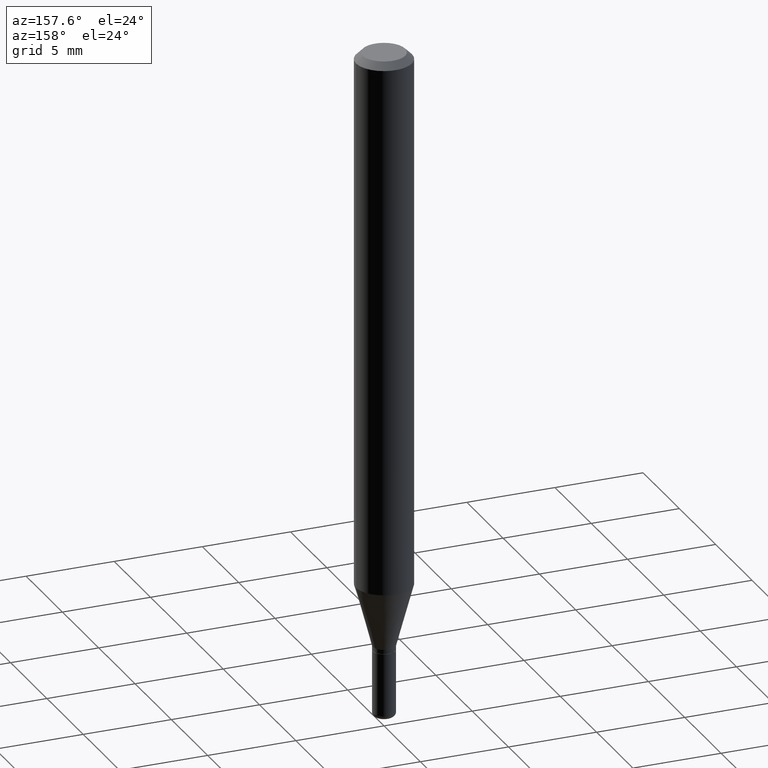
[diagram: clean part render]
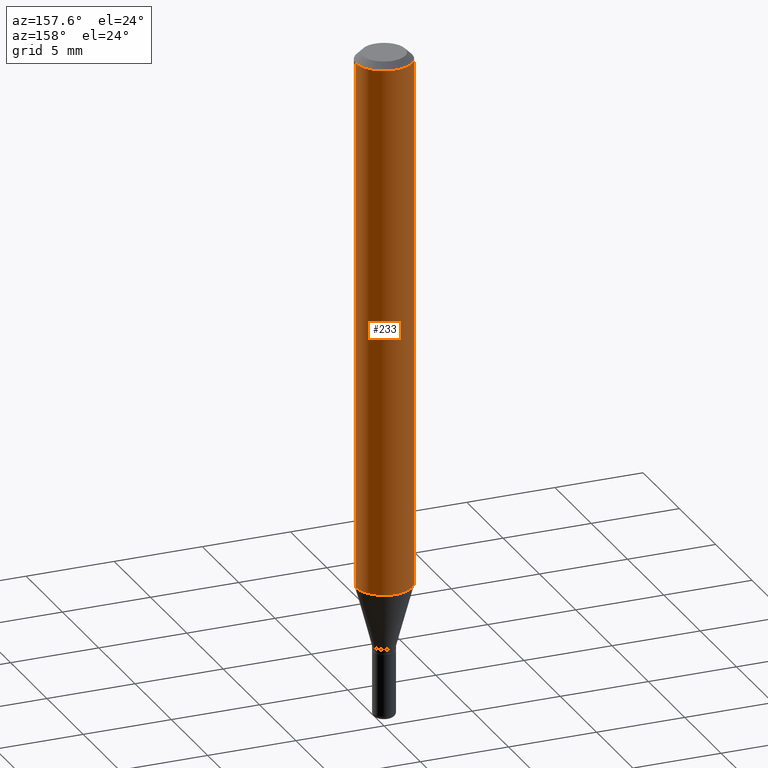
[diagram: same view with one face highlighted and labeled with its STEP entity id]
A machine part, auxiliary view. The second image highlights one B-rep face of the part: STEP entity #233.
In plain terms, the highlighted cylindrical surface (edge-blend (fillet) strip) has radius 1.5875 mm, axis along (-0, 0, 1).
Its self-contained STEP definition (entity closure, byte-faithful):
#6 = ORIENTED_EDGE ( 'NONE', *, *, #404, .F. ) ;
#32 = DIRECTION ( 'NONE',  ( -2.445468806185136597E-29, 3.491481338843145583E-15, 1.000000000000000000 ) ) ;
#33 = EDGE_LOOP ( 'NONE', ( #113, #430, #193, #6 ) ) ;
#36 = VECTOR ( 'NONE', #422, 39.37007874015748143 ) ;
#39 = CARTESIAN_POINT ( 'NONE',  ( 0.06250000000000000000, -4.888073874380378612E-16, -0.01499999999999970281 ) ) ;
#52 = CIRCLE ( 'NONE', #184, 0.06250000000000000000 ) ;
#100 = VECTOR ( 'NONE', #500, 39.37007874015748143 ) ;
#103 = EDGE_CURVE ( 'NONE', #200, #300, #287, .T. ) ;
#106 = CARTESIAN_POINT ( 'NONE',  ( 0.000000000000000000, 0.000000000000000000, 0.000000000000000000 ) ) ;
#113 = ORIENTED_EDGE ( 'NONE', *, *, #362, .T. ) ;
#171 = DIRECTION ( 'NONE',  ( 1.000000000000000000, -6.982962677686266711E-15, 0.000000000000000000 ) ) ;
#179 = CARTESIAN_POINT ( 'NONE',  ( 0.06250000000000000000, -4.364351673553916694E-16, 3.047610484872459871E-30 ) ) ;
#181 = CARTESIAN_POINT ( 'NONE',  ( 3.668203209277632395E-31, -5.237222008264614861E-17, -0.01499999999999970281 ) ) ;
#182 = CARTESIAN_POINT ( 'NONE',  ( -0.06250000000000000000, -3.745856318565706082E-15, -1.200048094716167135 ) ) ;
#184 = AXIS2_PLACEMENT_3D ( 'NONE', #181, #501, #171 ) ;
#193 = ORIENTED_EDGE ( 'NONE', *, *, #413, .F. ) ;
#200 = VERTEX_POINT ( 'NONE', #182 ) ;
#216 = DIRECTION ( 'NONE',  ( -2.445468806185136597E-29, 3.491481338843145583E-15, 1.000000000000000000 ) ) ;
#223 = CYLINDRICAL_SURFACE ( 'NONE', #414, 0.06250000000000000000 ) ;
#230 = VERTEX_POINT ( 'NONE', #39 ) ;
#233 = ADVANCED_FACE ( 'NONE', ( #509 ), #223, .T. ) ;
#244 = LINE ( 'NONE', #179, #36 ) ;
#287 = LINE ( 'NONE', #423, #100 ) ;
#300 = VERTEX_POINT ( 'NONE', #342 ) ;
#342 = CARTESIAN_POINT ( 'NONE',  ( -0.06250000000000000000, -1.677069664399144681E-15, -0.01499999999999970281 ) ) ;
#353 = AXIS2_PLACEMENT_3D ( 'NONE', #420, #216, #507 ) ;
#362 = EDGE_CURVE ( 'NONE', #486, #200, #389, .T. ) ;
#389 = CIRCLE ( 'NONE', #353, 0.06250000000000000000 ) ;
#404 = EDGE_CURVE ( 'NONE', #486, #230, #244, .T. ) ;
#413 = EDGE_CURVE ( 'NONE', #230, #300, #52, .T. ) ;
#414 = AXIS2_PLACEMENT_3D ( 'NONE', #106, #32, #431 ) ;
#420 = CARTESIAN_POINT ( 'NONE',  ( 2.934680181550293043E-29, -4.189945528415768698E-15, -1.200048094716167135 ) ) ;
#422 = DIRECTION ( 'NONE',  ( -2.445468806185136877E-29, 3.491481338843145188E-15, 1.000000000000000000 ) ) ;
#423 = CARTESIAN_POINT ( 'NONE',  ( -0.06250000000000000000, 4.440892098500626162E-16, -3.074334431409316114E-30 ) ) ;
#424 = CARTESIAN_POINT ( 'NONE',  ( 0.06250000000000000000, -4.626380695771160368E-15, -1.200048094716167135 ) ) ;
#430 = ORIENTED_EDGE ( 'NONE', *, *, #103, .T. ) ;
#431 = DIRECTION ( 'NONE',  ( 1.000000000000000000, -6.982962677686266711E-15, 4.876176775795935793E-29 ) ) ;
#486 = VERTEX_POINT ( 'NONE', #424 ) ;
#500 = DIRECTION ( 'NONE',  ( -2.445468806185136877E-29, 3.491481338843145188E-15, 1.000000000000000000 ) ) ;
#501 = DIRECTION ( 'NONE',  ( -2.445468806185136597E-29, 3.491481338843145583E-15, 1.000000000000000000 ) ) ;
#507 = DIRECTION ( 'NONE',  ( 1.000000000000000000, -6.982962677686262766E-15, 0.000000000000000000 ) ) ;
#509 = FACE_OUTER_BOUND ( 'NONE', #33, .T. ) ;